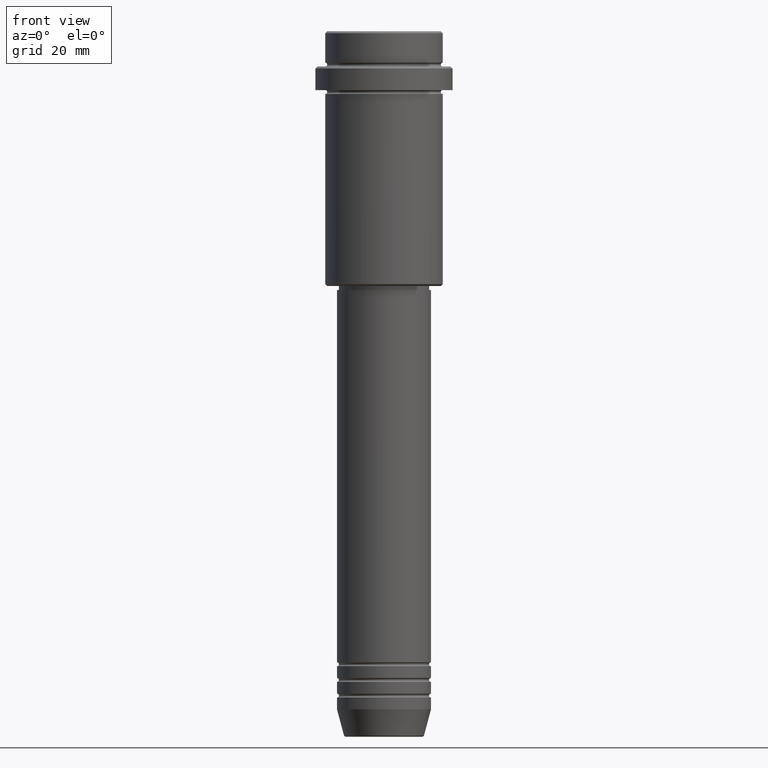
[diagram: clean part render]
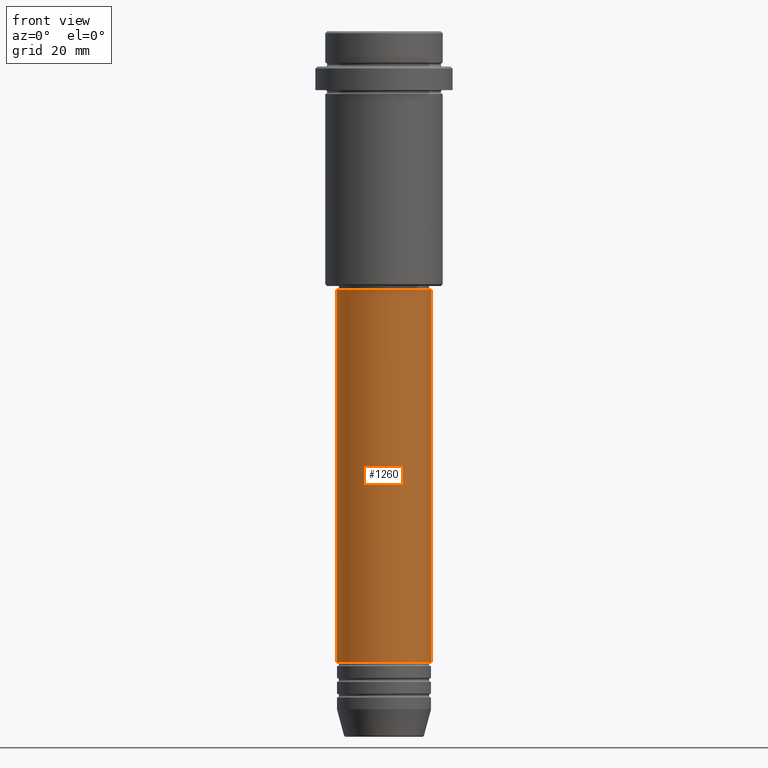
[diagram: same view with one face highlighted and labeled with its STEP entity id]
A machine part, front view. The second image highlights one B-rep face of the part: STEP entity #1260.
In plain terms, the highlighted cylindrical surface (partial cylindrical patch) has radius 12 mm, axis along (-0, -0, 1).
Its self-contained STEP definition (entity closure, byte-faithful):
#24 = EDGE_CURVE ( 'NONE', #278, #1208, #379, .T. ) ;
#65 = CARTESIAN_POINT ( 'NONE',  ( 0.000000000000000000, 0.000000000000000000, 0.000000000000000000 ) ) ;
#106 = AXIS2_PLACEMENT_3D ( 'NONE', #684, #991, #1007 ) ;
#114 = LINE ( 'NONE', #986, #1379 ) ;
#156 = CIRCLE ( 'NONE', #106, 12.00000000000000000 ) ;
#180 = AXIS2_PLACEMENT_3D ( 'NONE', #65, #294, #724 ) ;
#182 = LINE ( 'NONE', #612, #510 ) ;
#253 = CARTESIAN_POINT ( 'NONE',  ( -12.00000000000000000, 1.469576158976823947E-15, -160.9999999999999147 ) ) ;
#278 = VERTEX_POINT ( 'NONE', #349 ) ;
#294 = DIRECTION ( 'NONE',  ( -0.000000000000000000, -0.000000000000000000, 1.000000000000000000 ) ) ;
#323 = CARTESIAN_POINT ( 'NONE',  ( 0.000000000000000000, 0.000000000000000000, -66.00000000000000000 ) ) ;
#349 = CARTESIAN_POINT ( 'NONE',  ( -11.99999999999999822, 1.469576158976823750E-15, -66.00000000000000000 ) ) ;
#379 = CIRCLE ( 'NONE', #959, 11.99999999999999822 ) ;
#391 = EDGE_LOOP ( 'NONE', ( #589, #449, #662, #807 ) ) ;
#449 = ORIENTED_EDGE ( 'NONE', *, *, #1096, .T. ) ;
#492 = VERTEX_POINT ( 'NONE', #1060 ) ;
#510 = VECTOR ( 'NONE', #1378, 1000.000000000000000 ) ;
#546 = DIRECTION ( 'NONE',  ( -0.000000000000000000, -0.000000000000000000, 1.000000000000000000 ) ) ;
#589 = ORIENTED_EDGE ( 'NONE', *, *, #1293, .F. ) ;
#612 = CARTESIAN_POINT ( 'NONE',  ( -12.00000000000000000, 1.469576158976823947E-15, 0.000000000000000000 ) ) ;
#641 = DIRECTION ( 'NONE',  ( 1.000000000000000000, 0.000000000000000000, 0.000000000000000000 ) ) ;
#662 = ORIENTED_EDGE ( 'NONE', *, *, #726, .T. ) ;
#684 = CARTESIAN_POINT ( 'NONE',  ( 0.000000000000000000, 0.000000000000000000, -160.9999999999999147 ) ) ;
#717 = CYLINDRICAL_SURFACE ( 'NONE', #180, 12.00000000000000000 ) ;
#724 = DIRECTION ( 'NONE',  ( 1.000000000000000000, 0.000000000000000000, 0.000000000000000000 ) ) ;
#726 = EDGE_CURVE ( 'NONE', #492, #1208, #114, .T. ) ;
#751 = DIRECTION ( 'NONE',  ( -0.000000000000000000, -0.000000000000000000, 1.000000000000000000 ) ) ;
#807 = ORIENTED_EDGE ( 'NONE', *, *, #24, .F. ) ;
#959 = AXIS2_PLACEMENT_3D ( 'NONE', #323, #751, #641 ) ;
#986 = CARTESIAN_POINT ( 'NONE',  ( 12.00000000000000000, 0.000000000000000000, 0.000000000000000000 ) ) ;
#991 = DIRECTION ( 'NONE',  ( -0.000000000000000000, -0.000000000000000000, 1.000000000000000000 ) ) ;
#1007 = DIRECTION ( 'NONE',  ( 1.000000000000000000, 0.000000000000000000, 0.000000000000000000 ) ) ;
#1060 = CARTESIAN_POINT ( 'NONE',  ( 12.00000000000000000, 0.000000000000000000, -160.9999999999999147 ) ) ;
#1096 = EDGE_CURVE ( 'NONE', #1124, #492, #156, .T. ) ;
#1124 = VERTEX_POINT ( 'NONE', #253 ) ;
#1137 = FACE_OUTER_BOUND ( 'NONE', #391, .T. ) ;
#1208 = VERTEX_POINT ( 'NONE', #1254 ) ;
#1254 = CARTESIAN_POINT ( 'NONE',  ( 11.99999999999999822, 0.000000000000000000, -66.00000000000000000 ) ) ;
#1260 = ADVANCED_FACE ( 'NONE', ( #1137 ), #717, .T. ) ;
#1293 = EDGE_CURVE ( 'NONE', #1124, #278, #182, .T. ) ;
#1378 = DIRECTION ( 'NONE',  ( -0.000000000000000000, -0.000000000000000000, 1.000000000000000000 ) ) ;
#1379 = VECTOR ( 'NONE', #546, 1000.000000000000000 ) ;